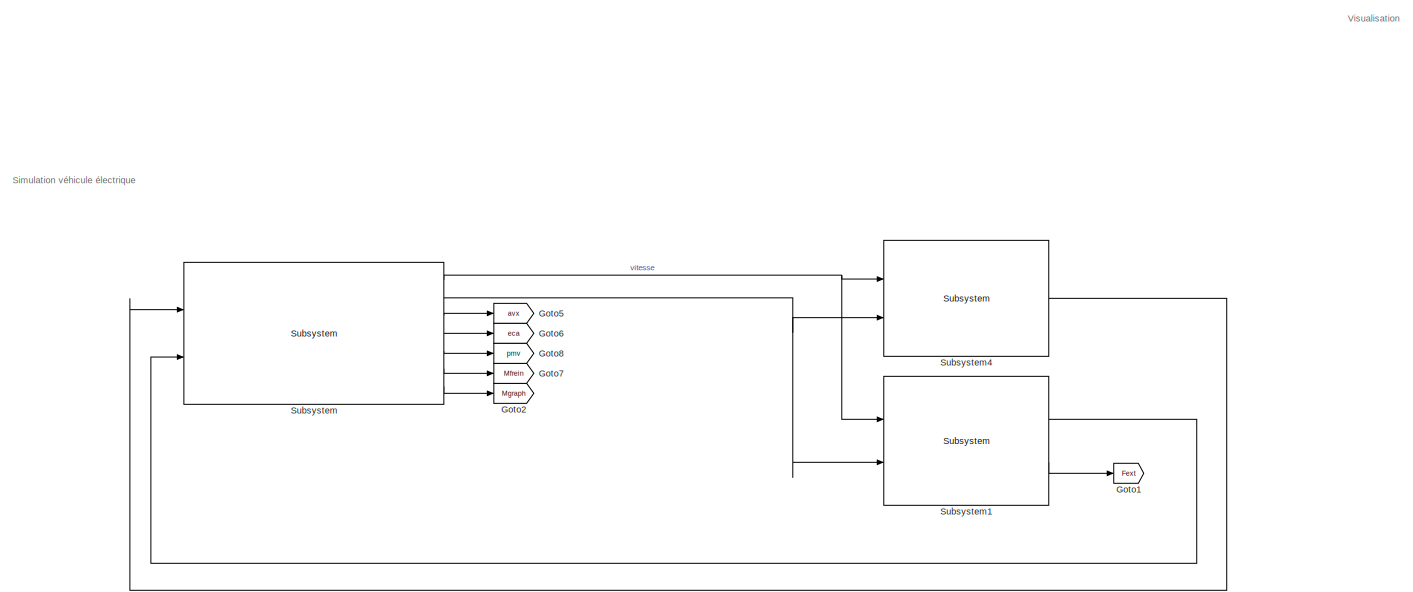
[diagram: root canvas - part 1/2, full width, top band]
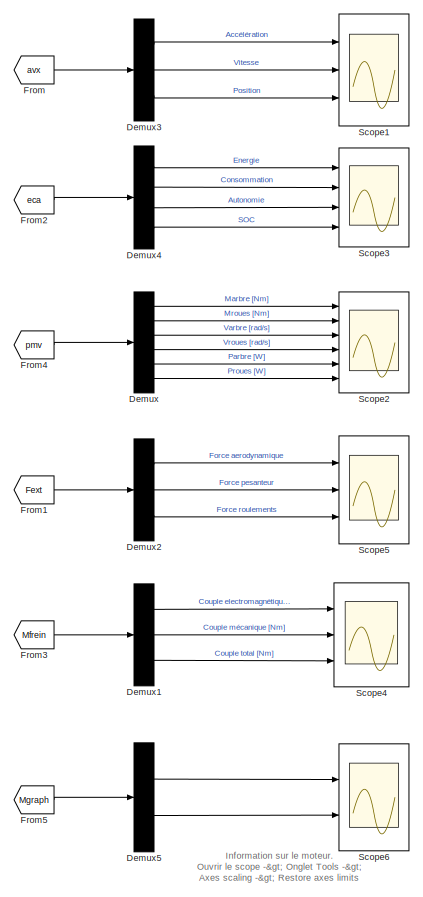
[diagram: root canvas - part 2/2, right side, full height]
MODEL slx_c7e9bd9fd9ed
KIND model
CONFIG AbsTol = auto
CONFIG EnableMultiTasking = off
CONFIG FixedStep = auto
CONFIG MaxStep = auto
CONFIG MinStep = auto
CONFIG RelTol = 1e-3
CONFIG SampleTimeConstraint = Unconstrained
CONFIG Solver = VariableStepAuto
CONFIG SolverName = VariableStepAuto
CONFIG StartTime = 0.0
CONFIG StopTime = 3600
BLOCK [Demux] Demux
  DisplayOption = bar
  Outputs = 6
  Ports = [1, 6]
BLOCK [Demux] Demux1
  DisplayOption = bar
  Outputs = 3
  Ports = [1, 3]
BLOCK [Demux] Demux2
  DisplayOption = bar
  Outputs = 3
  Ports = [1, 3]
BLOCK [Demux] Demux3
  DisplayOption = bar
  Outputs = 3
  Ports = [1, 3]
BLOCK [Demux] Demux4
  DisplayOption = bar
  Ports = [1, 4]
BLOCK [Demux] Demux5
  DisplayOption = bar
  Outputs = 2
  Ports = [1, 2]
BLOCK [From] From
  GotoTag = avx
BLOCK [From] From1
  GotoTag = Fext
BLOCK [From] From2
  GotoTag = eca
BLOCK [From] From3
  GotoTag = Mfrein
BLOCK [From] From4
  GotoTag = pmv
BLOCK [From] From5
  GotoTag = Mgraph
BLOCK [Goto] Goto1
  GotoTag = Fext
BLOCK [Goto] Goto2
  GotoTag = Mgraph
BLOCK [Goto] Goto5
  GotoTag = avx
BLOCK [Goto] Goto6
  GotoTag = eca
BLOCK [Goto] Goto7
  GotoTag = Mfrein
BLOCK [Goto] Goto8
  GotoTag = pmv
BLOCK [Scope] Scope1
  Floating = off
  NumInputPorts = 3
  Ports = [3]
  ScopeSpecificationString = Simulink.scopes.TimeScopeBlockCfg('CurrentConfiguration', extmgr.ConfigurationSet(extmgr.Configuration('Core','General UI',true,'FigureColor',[0.941176470588235 0.941176470588235 0.941176470588235],'DisplayFullSourceName',true),extmgr.Configuration('Core','Source UI',true),extmgr.Configuration('Sources','WiredSimulink',true,'DataLoggingVariableName','ScopeData1'),extmgr.Configuration('Visuals','Ti...<+3288ch>
BLOCK [Scope] Scope2
  Floating = off
  NumInputPorts = 6
  Ports = [6]
  ScopeSpecificationString = Simulink.scopes.TimeScopeBlockCfg('CurrentConfiguration', extmgr.ConfigurationSet(extmgr.Configuration('Core','General UI',true,'FigureColor',[0.831372549019608 0.815686274509804 0.784313725490196],'DisplayFullSourceName',true),extmgr.Configuration('Core','Source UI',true),extmgr.Configuration('Sources','WiredSimulink',true,'DataLoggingVariableName','ScopeData1'),extmgr.Configuration('Visuals','Ti...<+5882ch>
BLOCK [Scope] Scope3
  Floating = off
  NumInputPorts = 4
  Ports = [4]
  ScopeSpecificationString = Simulink.scopes.TimeScopeBlockCfg('CurrentConfiguration', extmgr.ConfigurationSet(extmgr.Configuration('Core','General UI',true,'FigureColor',[0.831372549019608 0.815686274509804 0.784313725490196],'DisplayFullSourceName',true),extmgr.Configuration('Core','Source UI',true),extmgr.Configuration('Sources','WiredSimulink',true,'DataLoggingVariableName','ScopeData4'),extmgr.Configuration('Visuals','Ti...<+4084ch>
BLOCK [Scope] Scope4
  Floating = off
  NumInputPorts = 3
  Ports = [3]
  ScopeSpecificationString = Simulink.scopes.TimeScopeBlockCfg('CurrentConfiguration', extmgr.ConfigurationSet(extmgr.Configuration('Core','General UI',true,'FigureColor',[0.831372549019608 0.815686274509804 0.784313725490196],'DisplayFullSourceName',true),extmgr.Configuration('Core','Source UI',true),extmgr.Configuration('Sources','WiredSimulink',true,'DataLoggingVariableName','ScopeData1'),extmgr.Configuration('Visuals','Ti...<+3556ch>
BLOCK [Scope] Scope5
  Floating = off
  NumInputPorts = 3
  Ports = [3]
  ScopeSpecificationString = Simulink.scopes.TimeScopeBlockCfg('CurrentConfiguration', extmgr.ConfigurationSet(extmgr.Configuration('Core','General UI',true,'FigureColor',[0.941176470588235 0.941176470588235 0.941176470588235],'DisplayFullSourceName',true),extmgr.Configuration('Core','Source UI',true),extmgr.Configuration('Sources','WiredSimulink',true,'DataLoggingVariableName','ScopeData1'),extmgr.Configuration('Visuals','Ti...<+3378ch>
BLOCK [Scope] Scope6
  Floating = off
  NumInputPorts = 2
  Ports = [2]
  ScopeSpecificationString = Simulink.scopes.TimeScopeBlockCfg('CurrentConfiguration', extmgr.ConfigurationSet(extmgr.Configuration('Core','General UI',true,'FigureColor',[0.941176470588235 0.941176470588235 0.941176470588235]),extmgr.Configuration('Core','Source UI',true),extmgr.Configuration('Sources','WiredSimulink',true,'DataLoggingVariableName','ScopeData1'),extmgr.Configuration('Visuals','Time Domain',true,'TimeAxisLabe...<+2795ch>
BLOCK [Reference] Subsystem  REF=Vehicule/Subsystem
  Ports = [2, 7]
  SourceBlock = Vehicule/Subsystem
BLOCK [Reference] Subsystem1  REF=ForcesExterieures/Subsystem
  Ports = [2, 2]
  SourceBlock = ForcesExterieures/Subsystem
BLOCK [Reference] Subsystem4  REF=Conducteur/Subsystem
  Ports = [2, 1]
  SourceBlock = Conducteur/Subsystem
ANNOTATION (root): Information sur le moteur. Ouvrir le scope -> Onglet Tools -> Axes scaling -> Restore axes limits
ANNOTATION (root): Simulation véhicule électrique
ANNOTATION (root): Visualisation
LINE Demux1:1 -> Scope4:1
LINE Demux1:2 -> Scope4:2
LINE Demux1:3 -> Scope4:3
LINE Demux2:1 -> Scope5:1
LINE Demux2:2 -> Scope5:2
LINE Demux2:3 -> Scope5:3
LINE Demux3:1 -> Scope1:1
LINE Demux3:2 -> Scope1:2
LINE Demux3:3 -> Scope1:3
LINE Demux4:1 -> Scope3:1
LINE Demux4:2 -> Scope3:2
LINE Demux4:3 -> Scope3:3
LINE Demux4:4 -> Scope3:4
LINE Demux5:1 -> Scope6:1
LINE Demux5:2 -> Scope6:2
LINE Demux:1 -> Scope2:1
LINE Demux:2 -> Scope2:2
LINE Demux:3 -> Scope2:3
LINE Demux:4 -> Scope2:4
LINE Demux:5 -> Scope2:5
LINE Demux:6 -> Scope2:6
LINE From1:1 -> Demux2:1
LINE From2:1 -> Demux4:1
LINE From3:1 -> Demux1:1
LINE From4:1 -> Demux:1
LINE From5:1 -> Demux5:1
LINE From:1 -> Demux3:1
LINE Subsystem1:1 -> Subsystem:2
LINE Subsystem1:2 -> Goto1:1
LINE Subsystem4:1 -> Subsystem:1
NET Subsystem:1 -> Subsystem1:1, Subsystem4:1
NET Subsystem:2 -> Subsystem1:2, Subsystem4:2
LINE Subsystem:3 -> Goto5:1
LINE Subsystem:4 -> Goto6:1
LINE Subsystem:5 -> Goto8:1
LINE Subsystem:6 -> Goto7:1
LINE Subsystem:7 -> Goto2:1
note: NET lines group one-source signal fan-out (src -> all destinations, sorted); 1:1 wires keep LINE
